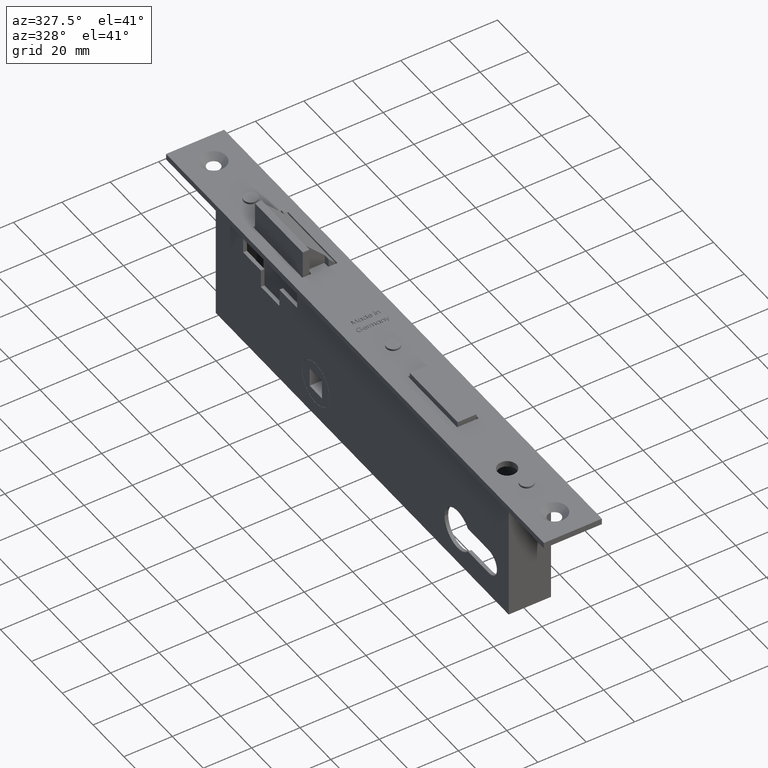
[diagram: clean part render]
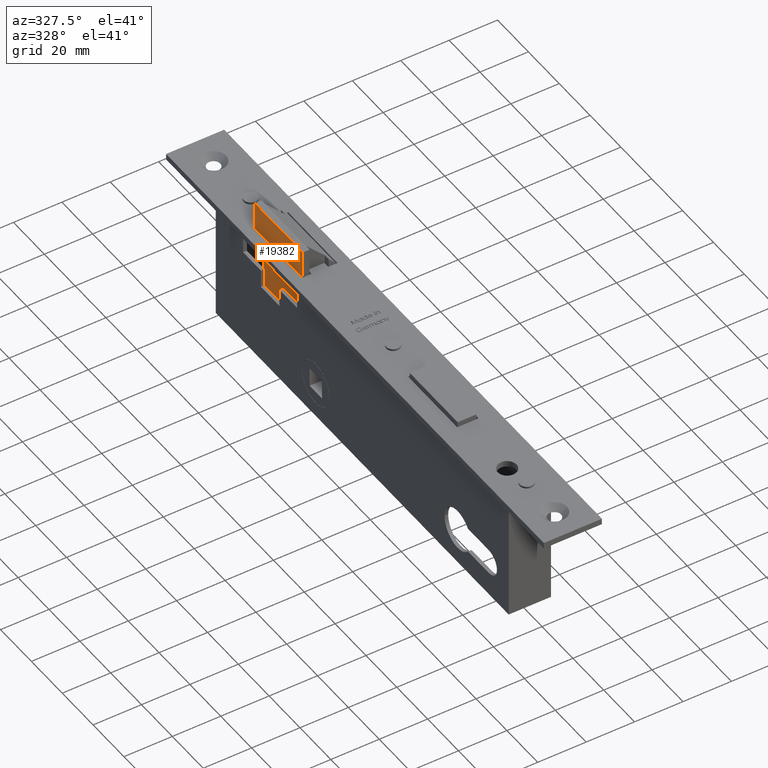
[diagram: same view with one face highlighted and labeled with its STEP entity id]
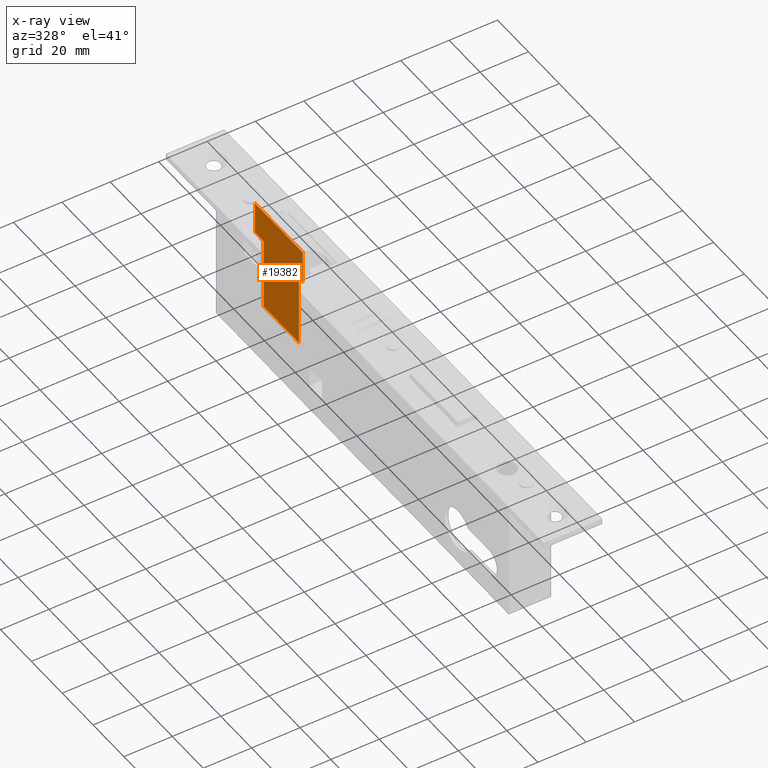
[diagram: x-ray of the same camera — body ghosted, the highlighted face saturated]
A machine part, auxiliary view. The second image highlights one B-rep face of the part: STEP entity #19382.
The next image is the same camera in x-ray: the body ghosted, the highlighted face saturated — about 0% of this face is hidden behind the body in this view.
In plain terms, the highlighted planar face has unit normal (1, 0, -0).
Its self-contained STEP definition (entity closure, byte-faithful):
#796 = CARTESIAN_POINT ( 'NONE',  ( -6.749999999999995600, 167.0999999999999700, -30.00000000000000000 ) ) ;
#1384 = PLANE ( 'NONE',  #2652 ) ;
#1453 = EDGE_CURVE ( 'NONE', #2449, #17842, #13578, .T. ) ;
#1774 = VECTOR ( 'NONE', #5878, 1000.000000000000000 ) ;
#1866 = CARTESIAN_POINT ( 'NONE',  ( -6.749999999999994700, 164.6000000000000200, 0.0000000000000000000 ) ) ;
#1868 = VECTOR ( 'NONE', #4406, 1000.000000000000000 ) ;
#2449 = VERTEX_POINT ( 'NONE', #1866 ) ;
#2652 = AXIS2_PLACEMENT_3D ( 'NONE', #15712, #6765, #15857 ) ;
#2760 = DIRECTION ( 'NONE',  ( -1.398970545142587500E-016, 1.000000000000000000, 0.0000000000000000000 ) ) ;
#2880 = CARTESIAN_POINT ( 'NONE',  ( -6.749999999999999100, 195.5999999999999900, 13.50000000000000000 ) ) ;
#3234 = EDGE_CURVE ( 'NONE', #10708, #10229, #22451, .T. ) ;
#3772 = CARTESIAN_POINT ( 'NONE',  ( -6.749999999999995600, 189.9999999999999700, -30.00000000000000000 ) ) ;
#4406 = DIRECTION ( 'NONE',  ( -0.0000000000000000000, -0.0000000000000000000, -1.000000000000000000 ) ) ;
#5104 = VECTOR ( 'NONE', #23005, 1000.000000000000000 ) ;
#5564 = CARTESIAN_POINT ( 'NONE',  ( -6.749999999999995600, 167.0999999999999700, -30.00000000000000000 ) ) ;
#5752 = LINE ( 'NONE', #21976, #11856 ) ;
#5878 = DIRECTION ( 'NONE',  ( 0.0000000000000000000, 1.000000000000000000, 0.0000000000000000000 ) ) ;
#6179 = CARTESIAN_POINT ( 'NONE',  ( -6.749999999999994700, 164.6000000000000200, 0.0000000000000000000 ) ) ;
#6730 = CARTESIAN_POINT ( 'NONE',  ( -6.749999999999994700, 164.6000000000000200, 13.50000000000000000 ) ) ;
#6765 = DIRECTION ( 'NONE',  ( 1.000000000000000000, 1.398970545142587500E-016, -0.0000000000000000000 ) ) ;
#6781 = LINE ( 'NONE', #12308, #5104 ) ;
#7030 = VERTEX_POINT ( 'NONE', #2880 ) ;
#7188 = EDGE_CURVE ( 'NONE', #11480, #10708, #6781, .T. ) ;
#7856 = CARTESIAN_POINT ( 'NONE',  ( -6.749999999999995600, 167.0999999999999700, -30.00000000000000000 ) ) ;
#7873 = DIRECTION ( 'NONE',  ( 1.398970545142587500E-016, -1.000000000000000000, 0.0000000000000000000 ) ) ;
#9072 = VECTOR ( 'NONE', #13194, 1000.000000000000000 ) ;
#10229 = VERTEX_POINT ( 'NONE', #20760 ) ;
#10708 = VERTEX_POINT ( 'NONE', #13381 ) ;
#10719 = LINE ( 'NONE', #796, #9072 ) ;
#11242 = ORIENTED_EDGE ( 'NONE', *, *, #11634, .F. ) ;
#11279 = DIRECTION ( 'NONE',  ( -1.398970545142587500E-016, 1.000000000000000000, 0.0000000000000000000 ) ) ;
#11480 = VERTEX_POINT ( 'NONE', #3772 ) ;
#11612 = LINE ( 'NONE', #6730, #1868 ) ;
#11634 = EDGE_CURVE ( 'NONE', #14662, #11480, #12307, .T. ) ;
#11856 = VECTOR ( 'NONE', #7873, 1000.000000000000000 ) ;
#12145 = DIRECTION ( 'NONE',  ( -0.0000000000000000000, -0.0000000000000000000, -1.000000000000000000 ) ) ;
#12292 = EDGE_LOOP ( 'NONE', ( #21116, #17875, #15310, #11242, #19578, #23065, #14540, #21770 ) ) ;
#12307 = LINE ( 'NONE', #7856, #1774 ) ;
#12308 = CARTESIAN_POINT ( 'NONE',  ( -6.749999999999995600, 189.9999999999999700, -30.00000000000000000 ) ) ;
#13194 = DIRECTION ( 'NONE',  ( -0.0000000000000000000, -0.0000000000000000000, 1.000000000000000000 ) ) ;
#13381 = CARTESIAN_POINT ( 'NONE',  ( -6.749999999999998200, 189.9999999999999700, 0.0000000000000000000 ) ) ;
#13578 = LINE ( 'NONE', #14801, #14992 ) ;
#14064 = LINE ( 'NONE', #22916, #15764 ) ;
#14540 = ORIENTED_EDGE ( 'NONE', *, *, #16352, .F. ) ;
#14662 = VERTEX_POINT ( 'NONE', #5564 ) ;
#14801 = CARTESIAN_POINT ( 'NONE',  ( -6.749999999999994700, 164.6000000000000200, 0.0000000000000000000 ) ) ;
#14992 = VECTOR ( 'NONE', #11279, 1000.000000000000000 ) ;
#15310 = ORIENTED_EDGE ( 'NONE', *, *, #7188, .F. ) ;
#15353 = EDGE_CURVE ( 'NONE', #14662, #17842, #10719, .T. ) ;
#15712 = CARTESIAN_POINT ( 'NONE',  ( -6.749999999999999100, 195.5999999999999900, 13.50000000000000000 ) ) ;
#15764 = VECTOR ( 'NONE', #12145, 1000.000000000000000 ) ;
#15857 = DIRECTION ( 'NONE',  ( -1.398970545142587500E-016, 1.000000000000000000, 0.0000000000000000000 ) ) ;
#16352 = EDGE_CURVE ( 'NONE', #17086, #2449, #11612, .T. ) ;
#17025 = EDGE_CURVE ( 'NONE', #7030, #17086, #5752, .T. ) ;
#17086 = VERTEX_POINT ( 'NONE', #21888 ) ;
#17315 = EDGE_CURVE ( 'NONE', #7030, #10229, #14064, .T. ) ;
#17650 = VECTOR ( 'NONE', #2760, 1000.000000000000000 ) ;
#17842 = VERTEX_POINT ( 'NONE', #18737 ) ;
#17875 = ORIENTED_EDGE ( 'NONE', *, *, #3234, .F. ) ;
#18737 = CARTESIAN_POINT ( 'NONE',  ( -6.749999999999995600, 167.0999999999999700, 0.0000000000000000000 ) ) ;
#19058 = FACE_OUTER_BOUND ( 'NONE', #12292, .T. ) ;
#19382 = ADVANCED_FACE ( 'NONE', ( #19058 ), #1384, .F. ) ;
#19578 = ORIENTED_EDGE ( 'NONE', *, *, #15353, .T. ) ;
#20760 = CARTESIAN_POINT ( 'NONE',  ( -6.749999999999999100, 195.5999999999999900, 0.0000000000000000000 ) ) ;
#21116 = ORIENTED_EDGE ( 'NONE', *, *, #17315, .T. ) ;
#21770 = ORIENTED_EDGE ( 'NONE', *, *, #17025, .F. ) ;
#21888 = CARTESIAN_POINT ( 'NONE',  ( -6.749999999999994700, 164.6000000000000200, 13.50000000000000000 ) ) ;
#21976 = CARTESIAN_POINT ( 'NONE',  ( -6.749999999999999100, 195.5999999999999900, 13.50000000000000000 ) ) ;
#22451 = LINE ( 'NONE', #6179, #17650 ) ;
#22916 = CARTESIAN_POINT ( 'NONE',  ( -6.749999999999999100, 195.5999999999999900, 13.50000000000000000 ) ) ;
#23005 = DIRECTION ( 'NONE',  ( -0.0000000000000000000, -0.0000000000000000000, 1.000000000000000000 ) ) ;
#23065 = ORIENTED_EDGE ( 'NONE', *, *, #1453, .F. ) ;